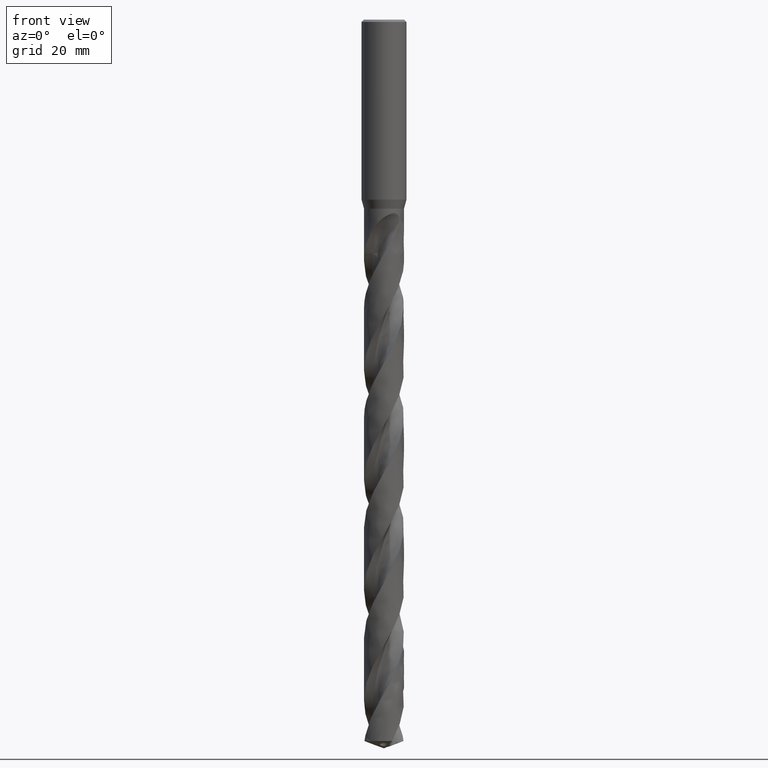
[diagram: clean part render]
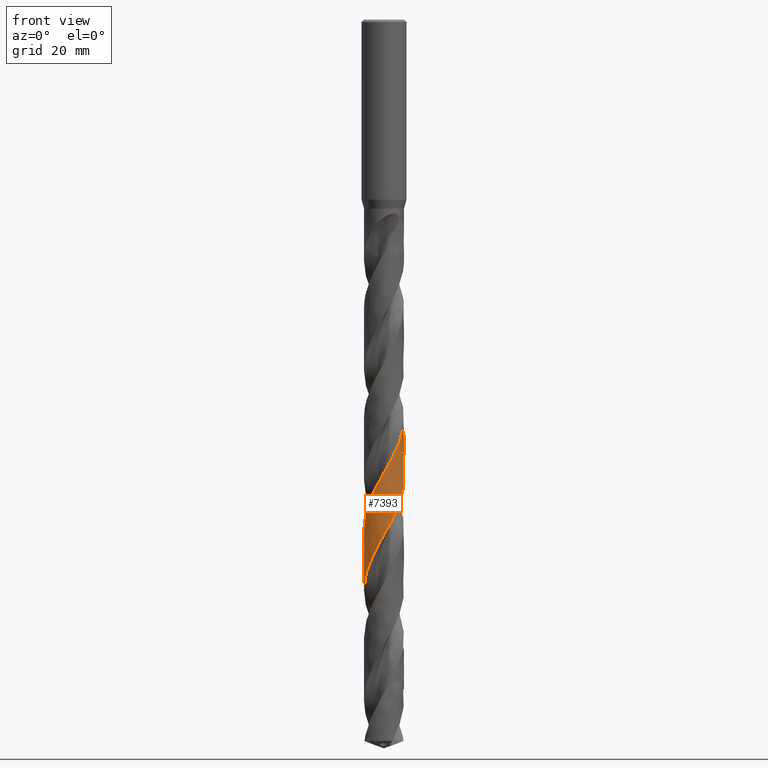
[diagram: same view with one face highlighted and labeled with its STEP entity id]
A machine part, front view. The second image highlights one B-rep face of the part: STEP entity #7393.
In plain terms, the highlighted face is a freeform B-spline surface patch.
Its self-contained STEP definition (entity closure, byte-faithful):
#2973 = VERTEX_POINT('', #2974);
#2974 = CARTESIAN_POINT('', (-4.45, 5.04471247667331E-15, -77.9364069246029));
#3131 = EDGE_CURVE('', #3132, #2973, #3134, .T.);
#3132 = VERTEX_POINT('', #3133);
#3133 = CARTESIAN_POINT('', (-4.45, 8.03775449722327E-15, -126.816492556376));
#3134 = B_SPLINE_CURVE_WITH_KNOTS('', 3, (#3135, #3136, #3137, #3138, #3139, #3140, #3141, #3142, #3143, #3144, #3145, #3146, #3147, #3148, #3149, #3150, #3151, #3152, #3153, #3154, #3155, #3156, #3157, #3158, #3159, #3160, #3161, #3162, #3163, #3164, #3165, #3166, #3167, #3168, #3169, #3170, #3171, #3172, #3173, #3174, #3175, #3176, #3177, #3178, #3179, #3180, #3181, #3182, #3183, #3184, #3185, #3186, #3187, #3188, #3189, #3190, #3191, #3192, #3193, #3194, #3195, #3196, #3197, #3198, #3199, #3200, #3201, #3202, #3203, #3204, #3205, #3206, #3207, #3208, #3209, #3210, #3211, #3212, #3213, #3214, #3215, #3216, #3217, #3218, #3219, #3220, #3221, #3222, #3223, #3224, #3225, #3226, #3227, #3228, #3229, #3230, #3231, #3232, #3233, #3234, #3235, #3236, #3237, #3238, #3239, #3240, #3241, #3242, #3243, #3244, #3245, #3246, #3247, #3248, #3249, #3250, #3251, #3252, #3253, #3254, #3255, #3256, #3257, #3258, #3259, #3260, #3261, #3262, #3263, #3264, #3265, #3266, #3267, #3268, #3269, #3270, #3271, #3272, #3273, #3274, #3275, #3276, #3277, #3278, #3279, #3280, #3281, #3282, #3283, #3284, #3285, #3286, #3287, #3288, #3289, #3290, #3291, #3292, #3293, #3294, #3295, #3296, #3297, #3298, #3299, #3300, #3301, #3302, #3303, #3304, #3305, #3306, #3307, #3308, #3309, #3310, #3311, #3312, #3313, #3314, #3315, #3316, #3317, #3318, #3319, #3320, #3321, #3322, #3323, #3324, #3325, #3326, #3327, #3328, #3329, #3330, #3331, #3332, #3333, #3334, #3335, #3336, #3337, #3338, #3339, #3340, #3341, #3342, #3343, #3344, #3345, #3346, #3347, #3348, #3349, #3350, #3351, #3352, #3353, #3354, #3355, #3356, #3357, #3358, #3359, #3360, #3361, #3362, #3363, #3364, #3365, #3366, #3367, #3368, #3369, #3370, #3371, #3372, #3373, #3374, #3375, #3376, #3377, #3378, #3379, #3380, #3381, #3382, #3383, #3384, #3385, #3386, #3387, #3388, #3389, #3390, #3391, #3392, #3393, #3394, #3395, #3396, #3397, #3398, #3399, #3400, #3401, #3402), .UNSPECIFIED., .F., .U., (4, 3, 3, 3, 3, 3, 3, 3, 3, 3, 3, 3, 3, 3, 3, 3, 3, 3, 3, 3, 3, 3, 3, 3, 3, 3, 3, 3, 3, 3, 3, 3, 3, 3, 3, 3, 3, 3, 3, 3, 3, 3, 3, 3, 3, 3, 3, 3, 3, 3, 3, 3, 3, 3, 3, 3, 3, 3, 3, 3, 3, 3, 3, 3, 3, 3, 3, 3, 3, 3, 3, 3, 3, 3, 3, 3, 3, 3, 3, 3, 3, 3, 3, 3, 3, 3, 3, 3, 3, 4), (0., 1.00019033047343, 1.66623800078271, 2.33215867872711, 2.9979555570398, 3.66363169036952, 4.32918939686239, 4.99463037967866, 5.65995649495976, 6.32516914360414, 6.99026899422075, 7.65525670050227, 8.32013281939076, 8.98489725832138, 9.64954948439048, 10.3140891448319, 10.9785153946755, 11.6428266899531, 12.3070215370674, 12.9710981940588, 13.635054172065, 14.0778874872815, 14.13627213697, 14.8025130335221, 15.4686208789362, 16.1345996108457, 16.8004529207069, 17.4661837785186, 18.1317945099715, 18.7972874560307, 19.4626645222889, 20.1279269179038, 20.7930757377307, 21.4581119543037, 22.1230359540188, 22.7878476757793, 23.4525471504583, 24.1171339877246, 24.7816071600958, 25.4459656087018, 26.1102080652516, 26.7743326137297, 27.4383369292533, 28.1022186407691, 28.1605948675949, 28.2189789648699, 28.8852234859198, 29.5513344643807, 30.2173158357679, 30.8831712664234, 31.5489037763001, 32.2145157391456, 32.8800094434142, 33.5453868052241, 34.2106490988227, 34.8757973847822, 35.540832605403, 36.205755190226, 36.8705650977816, 37.5352622953876, 38.199846401134, 38.8643164359603, 39.5286712810684, 40.1929096371724, 40.8570296250672, 41.521028904618, 42.1849050336944, 42.2432812147495, 42.3016714311548, 42.9679168572716, 43.6340283347223, 44.3000097852658, 44.9658648453837, 45.6315965736301, 46.2972073774093, 46.9626994908773, 47.6280748349941, 48.2933347353473, 48.9584802124224, 49.6235121777599, 50.2884310945734, 50.9532369277899, 51.6179295830217, 52.2825086816361, 52.946973277471, 53.6113221886952, 54.275554083993, 54.9396671087731, 55.603658892487, 56.3087243463285), .UNSPECIFIED.);
#3135 = CARTESIAN_POINT('', (-4.45, 8.47436271208319E-15, -126.816492556376));
#3136 = CARTESIAN_POINT('', (-4.45, -0.165218554062062, -126.526913136889));
#3137 = CARTESIAN_POINT('', (-4.44078447722619, -0.330505950077513, -126.23722708185));
#3138 = CARTESIAN_POINT('', (-4.42241566229207, -0.494711744267289, -125.947654198815));
#3139 = CARTESIAN_POINT('', (-4.41018348405513, -0.604059818667905, -125.754821556612));
#3140 = CARTESIAN_POINT('', (-4.3938905250667, -0.712975329907755, -125.56195806762));
#3141 = CARTESIAN_POINT('', (-4.37358663453475, -0.821121154409661, -125.369128380771));
#3142 = CARTESIAN_POINT('', (-4.35328661525585, -0.929246359225293, -125.176335459906));
#3143 = CARTESIAN_POINT('', (-4.32897037608889, -1.0366386967085, -124.983511273115));
#3144 = CARTESIAN_POINT('', (-4.30071222563018, -1.14296734525316, -124.790721344783));
#3145 = CARTESIAN_POINT('', (-4.27245932857288, -1.24927622650726, -124.59796725754));
#3146 = CARTESIAN_POINT('', (-4.24025668678078, -1.35455679136163, -124.405181842928));
#3147 = CARTESIAN_POINT('', (-4.20420295996698, -1.45848464901241, -124.212430521891));
#3148 = CARTESIAN_POINT('', (-4.16815577164378, -1.56239365892178, -124.019714157094));
#3149 = CARTESIAN_POINT('', (-4.1282466506198, -1.66498563244622, -123.826966935374));
#3150 = CARTESIAN_POINT('', (-4.08459851841765, -1.76594307477346, -123.634253379075));
#3151 = CARTESIAN_POINT('', (-4.04095815141838, -1.86688255630872, -123.441574107402));
#3152 = CARTESIAN_POINT('', (-3.99356514323843, -1.96622274585253, -123.248863865703));
#3153 = CARTESIAN_POINT('', (-3.94256511901019, -2.06365701664888, -123.056187653627));
#3154 = CARTESIAN_POINT('', (-3.89157403902566, -2.1610741996913, -122.863545232574));
#3155 = CARTESIAN_POINT('', (-3.83696037855751, -2.25661834273067, -122.670871432726));
#3156 = CARTESIAN_POINT('', (-3.77889150957669, -2.34999552315513, -122.478231850059));
#3157 = CARTESIAN_POINT('', (-3.72083266436661, -2.44335658493522, -122.285625520579));
#3158 = CARTESIAN_POINT('', (-3.6593004491763, -2.53458248981728, -122.092988172986));
#3159 = CARTESIAN_POINT('', (-3.59448426452203, -2.62339148281447, -121.900384589195));
#3160 = CARTESIAN_POINT('', (-3.52967913380703, -2.71218533006956, -121.707813852575));
#3161 = CARTESIAN_POINT('', (-3.46156891001216, -2.79859355441855, -121.5152123159));
#3162 = CARTESIAN_POINT('', (-3.39036341539509, -2.88234902667087, -121.322644563449));
#3163 = CARTESIAN_POINT('', (-3.31916999487098, -2.96609029676978, -121.130109464111));
#3164 = CARTESIAN_POINT('', (-3.24485851346535, -3.04720781448725, -120.93754311635));
#3165 = CARTESIAN_POINT('', (-3.16765687949445, -3.12545195032518, -120.745010961009));
#3166 = CARTESIAN_POINT('', (-3.0904682627057, -3.20368289320181, -120.55251126905));
#3167 = CARTESIAN_POINT('', (-3.01036504618744, -3.27906717080418, -120.359980383622));
#3168 = CARTESIAN_POINT('', (-2.92759329008695, -3.35137248419775, -120.167483442253));
#3169 = CARTESIAN_POINT('', (-2.84483542339283, -3.4236656644927, -119.975018802581));
#3170 = CARTESIAN_POINT('', (-2.75938177740326, -3.49290544766211, -119.782523403335));
#3171 = CARTESIAN_POINT('', (-2.67149586513004, -3.55887760994855, -119.590061598896));
#3172 = CARTESIAN_POINT('', (-2.58362471514816, -3.62483869081982, -119.397632122473));
#3173 = CARTESIAN_POINT('', (-2.49329211330728, -3.68755580437756, -119.20517168241));
#3174 = CARTESIAN_POINT('', (-2.40077567238837, -3.74683548756389, -119.012745244761));
#3175 = CARTESIAN_POINT('', (-2.30827484833157, -3.80610516428403, -118.820351288876));
#3176 = CARTESIAN_POINT('', (-2.21356043958617, -3.8619581247209, -118.62792605087));
#3177 = CARTESIAN_POINT('', (-2.11692289034422, -3.91422246127333, -118.435534901146));
#3178 = CARTESIAN_POINT('', (-2.02030170765602, -3.96647794632776, -118.243176334823));
#3179 = CARTESIAN_POINT('', (-1.9217257223272, -4.0151634582175, -118.05078688651));
#3180 = CARTESIAN_POINT('', (-1.82149850232564, -4.06012847161582, -117.858431073911));
#3181 = CARTESIAN_POINT('', (-1.72128838714057, -4.1050858112674, -117.666108088829));
#3182 = CARTESIAN_POINT('', (-1.61939324422089, -4.14633933809104, -117.473754333775));
#3183 = CARTESIAN_POINT('', (-1.51612673089642, -4.18376143390864, -117.281434355263));
#3184 = CARTESIAN_POINT('', (-1.41287808405031, -4.22117705520663, -117.089147650661));
#3185 = CARTESIAN_POINT('', (-1.30822416586289, -4.25477506542675, -116.896829728279));
#3186 = CARTESIAN_POINT('', (-1.20248575500843, -4.28445189131606, -116.704545919719));
#3187 = CARTESIAN_POINT('', (-1.09676587920497, -4.31412351510827, -116.512295816888));
#3188 = CARTESIAN_POINT('', (-0.989927005089895, -4.33988509932498, -116.320014664122));
#3189 = CARTESIAN_POINT('', (-0.882297374861005, -4.36165694917808, -116.127767300843));
#3190 = CARTESIAN_POINT('', (-0.77468689678193, -4.38342492484031, -115.935554147013));
#3191 = CARTESIAN_POINT('', (-0.66624929006791, -4.40121197492075, -115.743310313097));
#3192 = CARTESIAN_POINT('', (-0.557318663355887, -4.4149627300211, -115.551100033558));
#3193 = CARTESIAN_POINT('', (-0.448407832005385, -4.42871098627262, -115.358924683332));
#3194 = CARTESIAN_POINT('', (-0.338967220551853, -4.43842910956496, -115.166718360192));
#3195 = CARTESIAN_POINT('', (-0.229332695800508, -4.44408669072029, -114.974546011171));
#3196 = CARTESIAN_POINT('', (-0.156210649059359, -4.44786008158069, -114.84637438349));
#3197 = CARTESIAN_POINT('', (-0.0829889761527689, -4.44982855831882, -114.71819372038));
#3198 = CARTESIAN_POINT('', (-0.00976778549555304, -4.44998927980355, -114.590023248945));
#3199 = CARTESIAN_POINT('', (-0.000114054804124615, -4.45001046987047, -114.573124818276));
#3200 = CARTESIAN_POINT('', (0.00953977755878622, -4.45000024588791, -114.556226377098));
#3201 = CARTESIAN_POINT('', (0.0191934827872663, -4.4499586076972, -114.539327969895));
#3202 = CARTESIAN_POINT('', (0.129354171612029, -4.44948346456191, -114.346496291963));
#3203 = CARTESIAN_POINT('', (0.239518800154697, -4.44491478948598, -114.153633595535));
#3204 = CARTESIAN_POINT('', (0.34934567723751, -4.4362661775186, -113.960804869151));
#3205 = CARTESIAN_POINT('', (0.459150621426295, -4.42761929271578, -113.768014651483));
#3206 = CARTESIAN_POINT('', (0.568655151951697, -4.41489120587435, -113.575193039618));
#3207 = CARTESIAN_POINT('', (0.677521077590015, -4.39812064289069, -113.382405797131));
#3208 = CARTESIAN_POINT('', (0.786365901448348, -4.38135333059111, -113.189655923123));
#3209 = CARTESIAN_POINT('', (0.894608424669799, -4.36053955099711, -112.996874613566));
#3210 = CARTESIAN_POINT('', (1.00191426290611, -4.33574305163316, -112.804127517421));
#3211 = CARTESIAN_POINT('', (1.10919989251207, -4.31095122212966, -112.611416720836));
#3212 = CARTESIAN_POINT('', (1.21558565202664, -4.28216971285036, -112.418674908103));
#3213 = CARTESIAN_POINT('', (1.32074163590083, -4.24948720802851, -112.225966929066));
#3214 = CARTESIAN_POINT('', (1.42587828133282, -4.2168107135991, -112.033294389497));
#3215 = CARTESIAN_POINT('', (1.52982175916841, -4.18022344181272, -111.84059072925));
#3216 = CARTESIAN_POINT('', (1.63225051658353, -4.13983794986141, -111.647921228034));
#3217 = CARTESIAN_POINT('', (1.73466079146396, -4.0994597451825, -111.455286492647));
#3218 = CARTESIAN_POINT('', (1.83559095723413, -4.05527128517249, -111.26262028029));
#3219 = CARTESIAN_POINT('', (1.93472969768665, -4.00740826431364, -111.069988386598));
#3220 = CARTESIAN_POINT('', (2.03385089470873, -3.95955371321721, -110.877390580733));
#3221 = CARTESIAN_POINT('', (2.13121446537177, -3.90800985610914, -110.684761622099));
#3222 = CARTESIAN_POINT('', (2.2265190418347, -3.85293562836799, -110.492166576141));
#3223 = CARTESIAN_POINT('', (2.32180702326773, -3.7978709904964, -110.299605066038));
#3224 = CARTESIAN_POINT('', (2.41506948151588, -3.73925827657414, -110.107012592958));
#3225 = CARTESIAN_POINT('', (2.50601753727036, -3.67727835537281, -109.914454057845));
#3226 = CARTESIAN_POINT('', (2.59694991909709, -3.61530911575009, -109.721928708143));
#3227 = CARTESIAN_POINT('', (2.68559932389652, -3.54995299767284, -109.529371997071));
#3228 = CARTESIAN_POINT('', (2.77169227625752, -3.48141091021074, -109.336849580708));
#3229 = CARTESIAN_POINT('', (2.85777053054603, -3.41288052447964, -109.144360032406));
#3230 = CARTESIAN_POINT('', (2.94132172772425, -3.34114253479386, -108.951839180009));
#3231 = CARTESIAN_POINT('', (3.02208780438184, -3.26641780894706, -108.759352395934));
#3232 = CARTESIAN_POINT('', (3.10284020812481, -3.1917057332727, -108.566898198007));
#3233 = CARTESIAN_POINT('', (3.18083593005018, -3.11398245419676, -108.374413080097));
#3234 = CARTESIAN_POINT('', (3.25583323282412, -3.03348808470348, -108.181961724378));
#3235 = CARTESIAN_POINT('', (3.3308178807058, -2.95300729766633, -107.989542842509));
#3236 = CARTESIAN_POINT('', (3.4028308034101, -2.86972882680352, -107.797092855521));
#3237 = CARTESIAN_POINT('', (3.47164942485083, -2.78390917074047, -107.604676991892));
#3238 = CARTESIAN_POINT('', (3.54045642569423, -2.69810400604101, -107.412293619285));
#3239 = CARTESIAN_POINT('', (3.60609304289801, -2.60973005849663, -107.219878867282));
#3240 = CARTESIAN_POINT('', (3.66835680279702, -2.51905902419391, -107.027498308358));
#3241 = CARTESIAN_POINT('', (3.73061005005748, -2.42840329882551, -106.835150231047));
#3242 = CARTESIAN_POINT('', (3.78951246426094, -2.33542079189155, -106.642771131122));
#3243 = CARTESIAN_POINT('', (3.8448816381587, -2.24039844415007, -106.450425821344));
#3244 = CARTESIAN_POINT('', (3.90024142940953, -2.14539219852961, -106.258113105661));
#3245 = CARTESIAN_POINT('', (3.95208819288195, -2.04831417515156, -106.065769463339));
#3246 = CARTESIAN_POINT('', (4.00026134190431, -1.94946382281537, -105.87345974085));
#3247 = CARTESIAN_POINT('', (4.04842625182889, -1.85063037694544, -105.681182909269));
#3248 = CARTESIAN_POINT('', (4.09293495167187, -1.74999214345359, -105.488874756018));
#3249 = CARTESIAN_POINT('', (4.13365004555442, -1.64785839831217, -105.296600816632));
#3250 = CARTESIAN_POINT('', (4.17435810982455, -1.54574228694179, -105.104360074057));
#3251 = CARTESIAN_POINT('', (4.21128737787638, -1.44209726675627, -104.912088163455));
#3252 = CARTESIAN_POINT('', (4.24432355387876, -1.33724252474634, -104.719850175646));
#3253 = CARTESIAN_POINT('', (4.27735396200991, -1.23240608959645, -104.527645751163));
#3254 = CARTESIAN_POINT('', (4.30650389377622, -1.12632455597021, -104.33541048311));
#3255 = CARTESIAN_POINT('', (4.33168277911348, -1.01932541473847, -104.143208937081));
#3256 = CARTESIAN_POINT('', (4.35685719500772, -0.912345266665479, -103.951041508283));
#3257 = CARTESIAN_POINT('', (4.37807056064344, -0.804411471756946, -103.758842972342));
#3258 = CARTESIAN_POINT('', (4.39525702659935, -0.695856069980832, -103.566678526825));
#3259 = CARTESIAN_POINT('', (4.41244038112145, -0.587320321049503, -103.374548870714));
#3260 = CARTESIAN_POINT('', (4.42560399070972, -0.478127247919856, -103.182387949593));
#3261 = CARTESIAN_POINT('', (4.43470684985361, -0.368612473828242, -102.990261081516));
#3262 = CARTESIAN_POINT('', (4.44380802821473, -0.259117920915783, -102.798169688395));
#3263 = CARTESIAN_POINT('', (4.44885299381768, -0.149264856205531, -102.606047403792));
#3264 = CARTESIAN_POINT('', (4.44982564362019, -0.039392148719161, -102.413958794088));
#3265 = CARTESIAN_POINT('', (4.44991117034055, -0.0297308581866385, -102.397068122065));
#3266 = CARTESIAN_POINT('', (4.44996523284309, -0.0200692574176821, -102.380177438866));
#3267 = CARTESIAN_POINT('', (4.44998782946308, -0.0104075756299047, -102.363286789223));
#3268 = CARTESIAN_POINT('', (4.4500104291296, -0.000744591226652216, -102.346393862335));
#3269 = CARTESIAN_POINT('', (4.45000155448672, 0.00891849948739277, -102.329500924829));
#3270 = CARTESIAN_POINT('', (4.44996120534638, 0.0185814669009853, -102.312608021293));
#3271 = CARTESIAN_POINT('', (4.44950076500505, 0.128849491874703, -102.119836274344));
#3272 = CARTESIAN_POINT('', (4.44493881222117, 0.239122018003464, -101.927033360396));
#3273 = CARTESIAN_POINT('', (4.43628894958115, 0.349056379148613, -101.734264556191));
#3274 = CARTESIAN_POINT('', (4.42764082072656, 0.458968704961785, -101.54153439072));
#3275 = CARTESIAN_POINT('', (4.41490351037518, 0.568580377994841, -101.348772733116));
#3276 = CARTESIAN_POINT('', (4.39811587013238, 0.677552059173133, -101.156045532086));
#3277 = CARTESIAN_POINT('', (4.38133149630764, 0.78650253742703, -100.963355830526));
#3278 = CARTESIAN_POINT('', (4.36049276972679, 0.894849598132471, -100.770634598352));
#3279 = CARTESIAN_POINT('', (4.33566366088509, 1.00225776109767, -100.577947689387));
#3280 = CARTESIAN_POINT('', (4.31083924736412, 1.10964561258988, -100.385297218574));
#3281 = CARTESIAN_POINT('', (4.28201746964996, 1.21613152251986, -100.192615586285));
#3282 = CARTESIAN_POINT('', (4.2492872976874, 1.32138467590348, -99.9999679400357));
#3283 = CARTESIAN_POINT('', (4.21656316790464, 1.42661839894382, -99.8073558576606));
#3284 = CARTESIAN_POINT('', (4.17992083219818, 1.53065606998209, -99.6147125286646));
#3285 = CARTESIAN_POINT('', (4.13947326592958, 1.63317515308504, -99.4221034650291));
#3286 = CARTESIAN_POINT('', (4.09903302367469, 1.7356756726194, -99.2295292779401));
#3287 = CARTESIAN_POINT('', (4.05477541741664, 1.83669245696891, -99.0369235325951));
#3288 = CARTESIAN_POINT('', (4.00683669222009, 1.93591314936358, -98.8443521950116));
#3289 = CARTESIAN_POINT('', (3.95890648424639, 2.03511621332226, -98.6518150713749));
#3290 = CARTESIAN_POINT('', (3.9072803202013, 2.13255717872528, -98.4592466708493));
#3291 = CARTESIAN_POINT('', (3.85211770522471, 2.22793383768333, -98.2667123218401));
#3292 = CARTESIAN_POINT('', (3.79696473384687, 2.32329382277213, -98.0742116319315));
#3293 = CARTESIAN_POINT('', (3.73825755494314, 2.4166230510683, -97.881679836224));
#3294 = CARTESIAN_POINT('', (3.67617768122578, 2.50763188208666, -97.6891821100578));
#3295 = CARTESIAN_POINT('', (3.61410854340121, 2.59862497433181, -97.4967176738265));
#3296 = CARTESIAN_POINT('', (3.54864691729995, 2.68732925116255, -97.3042217855473));
#3297 = CARTESIAN_POINT('', (3.47999453097811, 2.77347040084484, -97.1117602774367));
#3298 = CARTESIAN_POINT('', (3.41135390978495, 2.85959678830598, -96.9193317519292));
#3299 = CARTESIAN_POINT('', (3.33950072248109, 2.94318964457856, -96.7268718228972));
#3300 = CARTESIAN_POINT('', (3.26465668586495, 3.02399019896515, -96.5344460774324));
#3301 = CARTESIAN_POINT('', (3.18982537162446, 3.10477701845646, -96.342053041489));
#3302 = CARTESIAN_POINT('', (3.11197864567283, 3.18280006290313, -96.1496289400522));
#3303 = CARTESIAN_POINT('', (3.03135743612418, 3.25781707504498, -95.9572387518038));
#3304 = CARTESIAN_POINT('', (2.9507498812422, 3.33282138169284, -95.7648811483294));
#3305 = CARTESIAN_POINT('', (2.86734115373367, 3.40484641158472, -95.5724923204048));
#3306 = CARTESIAN_POINT('', (2.78138872145804, 3.47366906600875, -95.3801377177614));
#3307 = CARTESIAN_POINT('', (2.69545085461517, 3.54248005779892, -95.1878157113803));
#3308 = CARTESIAN_POINT('', (2.60694146770135, 3.6081127393626, -94.9954622425477));
#3309 = CARTESIAN_POINT('', (2.51613333468147, 3.67036415660691, -94.8031430606764));
#3310 = CARTESIAN_POINT('', (2.4253405970099, 3.73260501992594, -94.6108564840432));
#3311 = CARTESIAN_POINT('', (2.33221924676776, 3.79148674018493, -94.418538756698));
#3312 = CARTESIAN_POINT('', (2.23705720793276, 3.84682662053232, -94.2262549616402));
#3313 = CARTESIAN_POINT('', (2.14191136000691, 3.90215708532929, -94.0340038818278));
#3314 = CARTESIAN_POINT('', (2.04469279113408, 3.95396594932485, -93.8417217388118));
#3315 = CARTESIAN_POINT('', (1.94570198055559, 4.00209242807586, -93.6494736390416));
#3316 = CARTESIAN_POINT('', (1.84672816101367, 4.05021064627465, -93.4572585372283));
#3317 = CARTESIAN_POINT('', (1.74594943044835, 4.09466395179726, -93.265012028615));
#3318 = CARTESIAN_POINT('', (1.64367625839045, 4.13531478337546, -93.072799819295));
#3319 = CARTESIAN_POINT('', (1.5414208159776, 4.17595856789723, -92.8806209310717));
#3320 = CARTESIAN_POINT('', (1.43763729197121, 4.21281475674175, -92.6884107699715));
#3321 = CARTESIAN_POINT('', (1.33264598913264, 4.24576903135919, -92.4962346530506));
#3322 = CARTESIAN_POINT('', (1.2276730956312, 4.27871752772325, -92.3040922325868));
#3323 = CARTESIAN_POINT('', (1.12145692695203, 4.30777673287048, -92.11191882357));
#3324 = CARTESIAN_POINT('', (1.01432597975764, 4.33285619502757, -91.9197792850685));
#3325 = CARTESIAN_POINT('', (0.90721412344869, 4.35793118798924, -91.727673986103));
#3326 = CARTESIAN_POINT('', (0.799151317791241, 4.37903642563493, -91.5355374678472));
#3327 = CARTESIAN_POINT('', (0.690470744993882, 4.39610624875102, -91.3434351379294));
#3328 = CARTESIAN_POINT('', (0.581809925632959, 4.41317296931018, -91.1513677239223));
#3329 = CARTESIAN_POINT('', (0.472495359005187, 4.42621143400181, -90.9592689584478));
#3330 = CARTESIAN_POINT('', (0.362863835246899, 4.43518092495337, -90.7672043459635));
#3331 = CARTESIAN_POINT('', (0.253252644604283, 4.44414875235333, -90.5751753552771));
#3332 = CARTESIAN_POINT('', (0.143287507977955, 4.44905212366002, -90.3831153411294));
#3333 = CARTESIAN_POINT('', (0.03330827676898, 4.44987534192805, -90.1910891467684));
#3334 = CARTESIAN_POINT('', (0.0236375456910489, 4.44994772943614, -90.1742038342856));
#3335 = CARTESIAN_POINT('', (0.0139665468854146, 4.44998859151374, -90.1573185105572));
#3336 = CARTESIAN_POINT('', (0.0042955103776915, 4.44999792680745, -90.1404332204236));
#3337 = CARTESIAN_POINT('', (-0.00537785133153856, 4.45000726434565, -90.1235438705699));
#3338 = CARTESIAN_POINT('', (-0.0150512761601983, 4.44998505996199, -90.106654509976));
#3339 = CARTESIAN_POINT('', (-0.0247245336384483, 4.44993131378861, -90.0897651833601));
#3340 = CARTESIAN_POINT('', (-0.135098564551426, 4.4493180579319, -89.8970541899653));
#3341 = CARTESIAN_POINT('', (-0.245471430001307, 4.44459533741564, -89.70431188563));
#3342 = CARTESIAN_POINT('', (-0.355499509276615, 4.4357772823829, -89.5116038332959));
#3343 = CARTESIAN_POINT('', (-0.46550546740276, 4.42696100022044, -89.3189345249225));
#3344 = CARTESIAN_POINT('', (-0.575204310384574, 4.41404804890887, -89.1262336215379));
#3345 = CARTESIAN_POINT('', (-0.684255635234596, 4.39707791898777, -88.9335672693058));
#3346 = CARTESIAN_POINT('', (-0.793285672947287, 4.38011110168563, -88.7409385261088));
#3347 = CARTESIAN_POINT('', (-0.901705020870895, 4.35908299520508, -88.54827815945));
#3348 = CARTESIAN_POINT('', (-1.00917719679195, 4.33405830434654, -88.3556522241014));
#3349 = CARTESIAN_POINT('', (-1.11662897656827, 4.30903836269134, -88.1630628454377));
#3350 = CARTESIAN_POINT('', (-1.22317068685607, 4.28001477166919, -87.9704421678262));
#3351 = CARTESIAN_POINT('', (-1.32847072221873, 4.24707729388196, -87.7778556253543));
#3352 = CARTESIAN_POINT('', (-1.43375125356135, 4.21414591688306, -87.5853047543974));
#3353 = CARTESIAN_POINT('', (-1.53782689962688, 4.1772907547592, -87.3927225098097));
#3354 = CARTESIAN_POINT('', (-1.64037432846146, 4.13662568557087, -87.2001746436454));
#3355 = CARTESIAN_POINT('', (-1.7429031304338, 4.0959680028441, -87.007661752152));
#3356 = CARTESIAN_POINT('', (-1.84393877516116, 4.05148813354668, -86.8151172186404));
#3357 = CARTESIAN_POINT('', (-1.94316808455546, 4.00332334381887, -86.6226071851945));
#3358 = CARTESIAN_POINT('', (-2.04237969958911, 3.95516714273453, -86.4301314797307));
#3359 = CARTESIAN_POINT('', (-2.13981914951201, 3.9033110363071, -86.2376243802161));
#3360 = CARTESIAN_POINT('', (-2.23518361275282, 3.84791556784726, -86.0451514660719));
#3361 = CARTESIAN_POINT('', (-2.33053134304327, 3.79252981925153, -85.8527123238341));
#3362 = CARTESIAN_POINT('', (-2.42383770152227, 3.73358684197097, -85.6602419369494));
#3363 = CARTESIAN_POINT('', (-2.51481256266948, 3.67126923211031, -85.4678057542166));
#3364 = CARTESIAN_POINT('', (-2.60577163952221, 3.60896243446186, -85.2754029594916));
#3365 = CARTESIAN_POINT('', (-2.69443091603657, 3.54326104810857, -85.0829686174278));
#3366 = CARTESIAN_POINT('', (-2.78051556962588, 3.47436802412584, -84.8905687479475));
#3367 = CARTESIAN_POINT('', (-2.86658541683915, 3.40548684959568, -84.6982019708327));
#3368 = CARTESIAN_POINT('', (-2.9501103979247, 3.33339201876335, -84.505803693653));
#3369 = CARTESIAN_POINT('', (-3.03083136762806, 3.25830649586589, -84.3134397130255));
#3370 = CARTESIAN_POINT('', (-3.11153856173218, 3.18323378683917, -84.1211085606595));
#3371 = CARTESIAN_POINT('', (-3.18947033387016, 3.10514567319843, -83.9287462044579));
#3372 = CARTESIAN_POINT('', (-3.2643842633825, 3.02428427582143, -83.7364179107243));
#3373 = CARTESIAN_POINT('', (-3.33928545830522, 2.94343662404179, -83.5441223108023));
#3374 = CARTESIAN_POINT('', (-3.41119558682705, 2.85978886449674, -83.3517953646322));
#3375 = CARTESIAN_POINT('', (-3.47989143196275, 2.77359975875256, -83.1595027530721));
#3376 = CARTESIAN_POINT('', (-3.5485755939096, 2.68742531129808, -82.9672428449585));
#3377 = CARTESIAN_POINT('', (-3.6140696323675, 2.59868146035112, -82.7749513895656));
#3378 = CARTESIAN_POINT('', (-3.67617053443775, 2.50764235921546, -82.5826943174181));
#3379 = CARTESIAN_POINT('', (-3.73826086431597, 2.41661875677351, -82.3904699755307));
#3380 = CARTESIAN_POINT('', (-3.79698023472054, 2.32326982465081, -82.1982143622143));
#3381 = CARTESIAN_POINT('', (-3.85214608712723, 2.22788476439658, -82.0059928184466));
#3382 = CARTESIAN_POINT('', (-3.90730251495617, 2.13251599980128, -81.813804113959));
#3383 = CARTESIAN_POINT('', (-3.95892564934961, 2.03507893674514, -81.6215842127095));
#3384 = CARTESIAN_POINT('', (-4.00685496652966, 1.93587532584014, -81.4293984820687));
#3385 = CARTESIAN_POINT('', (-4.0547760257912, 1.83668880709045, -81.2372458638148));
#3386 = CARTESIAN_POINT('', (-4.09902075280122, 1.73570284726661, -81.0450617492245));
#3387 = CARTESIAN_POINT('', (-4.13945190280173, 1.6332292993916, -80.85291202578));
#3388 = CARTESIAN_POINT('', (-4.17987601365843, 1.53077359236555, -80.6607957559855));
#3389 = CARTESIAN_POINT('', (-4.21650144055498, 1.42679639540235, -80.4686481124048));
#3390 = CARTESIAN_POINT('', (-4.24921432715251, 1.32161931051338, -80.276534631292));
#3391 = CARTESIAN_POINT('', (-4.28192145182485, 1.21646075112181, -80.0844549883276));
#3392 = CARTESIAN_POINT('', (-4.31072861770311, 1.11006665299857, -79.8923442180028));
#3393 = CARTESIAN_POINT('', (-4.33554598846213, 1.00276666375086, -79.700267467002));
#3394 = CARTESIAN_POINT('', (-4.36035891792025, 0.895485876841002, -79.5082250899344));
#3395 = CARTESIAN_POINT('', (-4.38119197584789, 0.787262888686888, -79.3161513773876));
#3396 = CARTESIAN_POINT('', (-4.3979802051889, 0.678432100336358, -79.1241119591406));
#3397 = CARTESIAN_POINT('', (-4.41476536965578, 0.569621180231636, -78.932107599781));
#3398 = CARTESIAN_POINT('', (-4.4275128106031, 0.460166221276042, -78.7400718018139));
#3399 = CARTESIAN_POINT('', (-4.436182612369, 0.350405236426726, -78.5480702579775));
#3400 = CARTESIAN_POINT('', (-4.44538871682198, 0.233854579483314, -78.3441917477857));
#3401 = CARTESIAN_POINT('', (-4.45, 0.116919215736867, -78.1402822588213));
#3402 = CARTESIAN_POINT('', (-4.45, 5.22870836160768E-15, -77.9364069246029));
#3947 = VERTEX_POINT('', #3948);
#3948 = CARTESIAN_POINT('', (-4.45, 4.20190967187908E-15, -64.1723925919638));
#3973 = EDGE_CURVE('', #3947, #2973, #3974, .T.);
#3974 = LINE('', #3975, #3976);
#3975 = CARTESIAN_POINT('', (-4.45, 4.20190967187908E-15, -64.1723925919638));
#3976 = VECTOR('', #3977, 13.764014332639);
#3977 = DIRECTION('', (0., 8.42802804794234E-16, -13.764014332639));
#7108 = EDGE_CURVE('', #7109, #3132, #7111, .T.);
#7109 = VERTEX_POINT('', #7110);
#7110 = CARTESIAN_POINT('', (-4.45, 7.18570411707461E-15, -112.901453857187));
#7111 = LINE('', #7112, #7113);
#7112 = CARTESIAN_POINT('', (-4.45, 7.18570411707461E-15, -112.901453857187));
#7113 = VECTOR('', #7114, 13.9150386991889);
#7114 = DIRECTION('', (-8.88178419700125E-16, 8.52050380148663E-16, -13.9150386991889));
#7393 = ADVANCED_FACE('', (#7394), #7673, .T.);
#7394 = FACE_OUTER_BOUND('', #7395, .T.);
#7395 = EDGE_LOOP('', (#7396, #7670, #7671, #7672));
#7396 = ORIENTED_EDGE('', *, *, #7397, .F.);
#7397 = EDGE_CURVE('', #7109, #3947, #7398, .T.);
#7398 = B_SPLINE_CURVE_WITH_KNOTS('', 3, (#7399, #7400, #7401, #7402, #7403, #7404, #7405, #7406, #7407, #7408, #7409, #7410, #7411, #7412, #7413, #7414, #7415, #7416, #7417, #7418, #7419, #7420, #7421, #7422, #7423, #7424, #7425, #7426, #7427, #7428, #7429, #7430, #7431, #7432, #7433, #7434, #7435, #7436, #7437, #7438, #7439, #7440, #7441, #7442, #7443, #7444, #7445, #7446, #7447, #7448, #7449, #7450, #7451, #7452, #7453, #7454, #7455, #7456, #7457, #7458, #7459, #7460, #7461, #7462, #7463, #7464, #7465, #7466, #7467, #7468, #7469, #7470, #7471, #7472, #7473, #7474, #7475, #7476, #7477, #7478, #7479, #7480, #7481, #7482, #7483, #7484, #7485, #7486, #7487, #7488, #7489, #7490, #7491, #7492, #7493, #7494, #7495, #7496, #7497, #7498, #7499, #7500, #7501, #7502, #7503, #7504, #7505, #7506, #7507, #7508, #7509, #7510, #7511, #7512, #7513, #7514, #7515, #7516, #7517, #7518, #7519, #7520, #7521, #7522, #7523, #7524, #7525, #7526, #7527, #7528, #7529, #7530, #7531, #7532, #7533, #7534, #7535, #7536, #7537, #7538, #7539, #7540, #7541, #7542, #7543, #7544, #7545, #7546, #7547, #7548, #7549, #7550, #7551, #7552, #7553, #7554, #7555, #7556, #7557, #7558, #7559, #7560, #7561, #7562, #7563, #7564, #7565, #7566, #7567, #7568, #7569, #7570, #7571, #7572, #7573, #7574, #7575, #7576, #7577, #7578, #7579, #7580, #7581, #7582, #7583, #7584, #7585, #7586, #7587, #7588, #7589, #7590, #7591, #7592, #7593, #7594, #7595, #7596, #7597, #7598, #7599, #7600, #7601, #7602, #7603, #7604, #7605, #7606, #7607, #7608, #7609, #7610, #7611, #7612, #7613, #7614, #7615, #7616, #7617, #7618, #7619, #7620, #7621, #7622, #7623, #7624, #7625, #7626, #7627, #7628, #7629, #7630, #7631, #7632, #7633, #7634, #7635, #7636, #7637, #7638, #7639, #7640, #7641, #7642, #7643, #7644, #7645, #7646, #7647, #7648, #7649, #7650, #7651, #7652, #7653, #7654, #7655, #7656, #7657, #7658, #7659, #7660, #7661, #7662, #7663, #7664, #7665, #7666, #7667, #7668, #7669), .UNSPECIFIED., .F., .U., (4, 3, 3, 3, 3, 3, 3, 3, 3, 3, 3, 3, 3, 3, 3, 3, 3, 3, 3, 3, 3, 3, 3, 3, 3, 3, 3, 3, 3, 3, 3, 3, 3, 3, 3, 3, 3, 3, 3, 3, 3, 3, 3, 3, 3, 3, 3, 3, 3, 3, 3, 3, 3, 3, 3, 3, 3, 3, 3, 3, 3, 3, 3, 3, 3, 3, 3, 3, 3, 3, 3, 3, 3, 3, 3, 3, 3, 3, 3, 3, 3, 3, 3, 3, 3, 3, 3, 3, 3, 3, 4), (0., 0.666248320761345, 1.33236353152512, 1.99834954591526, 2.66421004335246, 3.32994800818801, 3.99556576380732, 4.66106562414643, 5.32644949685845, 5.99171860109898, 6.65687400240437, 7.32191666376597, 7.98684698013192, 8.6516648740894, 9.31637035502943, 9.98096303329405, 10.6454418778871, 11.3098058018228, 11.9740535292301, 12.6381831449606, 13.302192296934, 13.9660785990265, 14.0536357595779, 14.1120175575394, 14.7782654711892, 15.4443796226089, 16.1103638778864, 16.7762218723059, 17.441956655067, 18.1075705876779, 18.7730658897129, 19.4384444798065, 20.1037076558153, 20.7688564015724, 21.4338916315479, 22.0988137958071, 22.763622812735, 23.4283185857872, 24.0929007298318, 24.7573682606922, 25.421719975197, 26.0859545410298, 26.7500700797064, 27.414064174135, 28.0779343150331, 28.1363104451667, 28.8025668849506, 29.4686926745199, 30.1346875348718, 30.8005551324991, 31.4662985345811, 32.1319201747049, 32.7974223160466, 33.4628068792343, 34.128075181192, 34.7932282687293, 35.4582670541667, 36.1231919720126, 36.7880029898899, 37.4527000216976, 38.1172826584835, 38.7817499171982, 39.4461006272798, 40.1103334326789, 40.7744464151225, 41.4384371926862, 42.1023032378313, 42.1606793339186, 42.219069614192, 42.8853262673998, 43.5514474482631, 44.2174370965816, 44.8832988536756, 45.5490358061481, 46.2146503808818, 46.880144792187, 47.5455209573349, 48.2107802046049, 48.8759235271274, 49.5409518080554, 50.205865487024, 50.8706644940936, 51.5353486872731, 52.1999176403045, 52.8643703478449, 53.5287055643325, 54.1929218876486, 54.8570173713012, 55.5209895520053, 55.9638294716624, 56.1777652594139), .UNSPECIFIED.);
#7399 = CARTESIAN_POINT('', (-4.45, 6.21794525791405E-15, -112.901453857187));
#7400 = CARTESIAN_POINT('', (-4.45, -0.110149103485915, -112.708612125901));
#7401 = CARTESIAN_POINT('', (-4.4459074494756, -0.220322019840254, -112.515740656291));
#7402 = CARTESIAN_POINT('', (-4.4377340375369, -0.3301766377056, -112.322904154054));
#7403 = CARTESIAN_POINT('', (-4.42956225856717, -0.440009307676353, -112.130106178692));
#7404 = CARTESIAN_POINT('', (-4.41730853960159, -0.549560990331393, -111.937277815309));
#7405 = CARTESIAN_POINT('', (-4.40100964376499, -0.658493823424058, -111.744485085838));
#7406 = CARTESIAN_POINT('', (-4.38471390918068, -0.767405528449417, -111.551729749481));
#7407 = CARTESIAN_POINT('', (-4.36436922621221, -0.875734243318333, -111.358943991821));
#7408 = CARTESIAN_POINT('', (-4.3400374402706, -0.983145470949975, -111.166193576716));
#7409 = CARTESIAN_POINT('', (-4.3157102400884, -1.09053645501837, -110.973479488868));
#7410 = CARTESIAN_POINT('', (-4.28738906441819, -1.1970470242105, -110.78073565361));
#7411 = CARTESIAN_POINT('', (-4.25516091389095, -1.30234618934243, -110.588026577749));
#7412 = CARTESIAN_POINT('', (-4.22293869403409, -1.4076259771713, -110.395352964488));
#7413 = CARTESIAN_POINT('', (-4.18679977920007, -1.51173138504034, -110.202649368178));
#7414 = CARTESIAN_POINT('', (-4.14685490104707, -1.61434024594009, -110.009981117553));
#7415 = CARTESIAN_POINT('', (-4.10691723555542, -1.71693057923377, -109.81734765614));
#7416 = CARTESIAN_POINT('', (-4.0631618889065, -1.81805863229218, -109.62468363795));
#7417 = CARTESIAN_POINT('', (-4.01572263688731, -1.91741276296754, -109.432055192097));
#7418 = CARTESIAN_POINT('', (-3.96829178738422, -2.01674929588054, -109.239460864902));
#7419 = CARTESIAN_POINT('', (-3.91716245968469, -2.11434566400038, -109.046836545252));
#7420 = CARTESIAN_POINT('', (-3.86249213866648, -2.20989920103602, -108.854247125285));
#7421 = CARTESIAN_POINT('', (-3.80783134594599, -2.30543608438218, -108.66169127105));
#7422 = CARTESIAN_POINT('', (-3.74961175448526, -2.398964113634, -108.46910567851));
#7423 = CARTESIAN_POINT('', (-3.6880128712624, -2.49019297673953, -108.276555094344));
#7424 = CARTESIAN_POINT('', (-3.6264246128983, -2.58140610427104, -108.084037722188));
#7425 = CARTESIAN_POINT('', (-3.5614376229705, -2.67035147442054, -107.891489923329));
#7426 = CARTESIAN_POINT('', (-3.49325106825035, -2.75675479035909, -107.698977722328));
#7427 = CARTESIAN_POINT('', (-3.42507616747798, -2.8431433388741, -107.506498424106));
#7428 = CARTESIAN_POINT('', (-3.35368041708607, -2.92701902011305, -107.313988841418));
#7429 = CARTESIAN_POINT('', (-3.27928337105733, -3.00812243306466, -107.121514441553));
#7430 = CARTESIAN_POINT('', (-3.20489893489204, -3.08921209946291, -106.92907266497));
#7431 = CARTESIAN_POINT('', (-3.12748859059345, -3.1675583086726, -106.736601217788));
#7432 = CARTESIAN_POINT('', (-3.04729173812503, -3.24291736909144, -106.54416449421));
#7433 = CARTESIAN_POINT('', (-2.96710843323117, -3.31826369917911, -106.351760278776));
#7434 = CARTESIAN_POINT('', (-2.88411190653361, -3.39064993664523, -106.15932602137));
#7435 = CARTESIAN_POINT('', (-2.79855750323081, -3.45985200566592, -105.96692713448));
#7436 = CARTESIAN_POINT('', (-2.71301756495064, -3.52904237441806, -105.774560777232));
#7437 = CARTESIAN_POINT('', (-2.62489257874158, -3.59507235662884, -105.582163946988));
#7438 = CARTESIAN_POINT('', (-2.53445304918406, -3.65773806354167, -105.389802557307));
#7439 = CARTESIAN_POINT('', (-2.44402881190508, -3.72039317440818, -105.197473693712));
#7440 = CARTESIAN_POINT('', (-2.35126036182185, -3.77970618034693, -105.005114976145));
#7441 = CARTESIAN_POINT('', (-2.25643437410981, -3.83549265614414, -104.812791034449));
#7442 = CARTESIAN_POINT('', (-2.16162447867535, -3.89126966479552, -104.62049973075));
#7443 = CARTESIAN_POINT('', (-2.06472473764652, -3.94354076791797, -104.428178662189));
#7444 = CARTESIAN_POINT('', (-1.9660342606288, -3.9921434450723, -104.235892661751));
#7445 = CARTESIAN_POINT('', (-1.86736068764827, -4.04073779739644, -104.043639596707));
#7446 = CARTESIAN_POINT('', (-1.7668642059118, -4.08568118225978, -103.851356086756));
#7447 = CARTESIAN_POINT('', (-1.66485321678375, -4.12683459403994, -103.659108119543));
#7448 = CARTESIAN_POINT('', (-1.56285987030908, -4.16798088839691, -103.46689340134));
#7449 = CARTESIAN_POINT('', (-1.4593188997208, -4.20535205269315, -103.274648551594));
#7450 = CARTESIAN_POINT('', (-1.35454944521547, -4.23883189103631, -103.082438718376));
#7451 = CARTESIAN_POINT('', (-1.24979831477389, -4.27230587379212, -102.890262502448));
#7452 = CARTESIAN_POINT('', (-1.14378289068556, -4.30190143683097, -102.69805666095));
#7453 = CARTESIAN_POINT('', (-1.03683123472494, -4.32752596649619, -102.505885561185));
#7454 = CARTESIAN_POINT('', (-0.929898596126227, -4.35314593979481, -102.31374863188));
#7455 = CARTESIAN_POINT('', (-0.821993504881298, -4.37480510132749, -102.121581571919));
#7456 = CARTESIAN_POINT('', (-0.713447866573965, -4.39243578685918, -101.929449910904));
#7457 = CARTESIAN_POINT('', (-0.604921916916398, -4.41006327443288, -101.737353099866));
#7458 = CARTESIAN_POINT('', (-0.495720093930348, -4.42366952776582, -101.545225932855));
#7459 = CARTESIAN_POINT('', (-0.386178100667816, -4.43321175611599, -101.353134047372));
#7460 = CARTESIAN_POINT('', (-0.27665637402479, -4.44275221903624, -101.161077701256));
#7461 = CARTESIAN_POINT('', (-0.166757423178943, -4.44823334522086, -100.968991639918));
#7462 = CARTESIAN_POINT('', (-0.056821255931539, -4.44963721497327, -100.776940247307));
#7463 = CARTESIAN_POINT('', (-0.0423222391334058, -4.44982236542587, -100.751611400238));
#7464 = CARTESIAN_POINT('', (-0.0278221995012523, -4.44993664960454, -100.726282521491));
#7465 = CARTESIAN_POINT('', (-0.013321910041474, -4.44998005913653, -100.700953763451));
#7466 = CARTESIAN_POINT('', (-0.00365333508664049, -4.45000900395967, -100.684064928487));
#7467 = CARTESIAN_POINT('', (0.00601538257564826, -4.45000643805744, -100.667176091819));
#7468 = CARTESIAN_POINT('', (0.0156840132438483, -4.44997236078254, -100.650287298325));
#7469 = CARTESIAN_POINT('', (0.126021571103717, -4.44958347393595, -100.457553881032));
#7470 = CARTESIAN_POINT('', (0.236368598313544, -4.44508789661081, -100.264790508487));
#7471 = CARTESIAN_POINT('', (0.346381086054587, -4.4364986355485, -100.072062266694));
#7472 = CARTESIAN_POINT('', (0.456371486648476, -4.42791109894745, -99.8793727188447));
#7473 = CARTESIAN_POINT('', (0.566065229424803, -4.41522862652245, -99.6866526794321));
#7474 = CARTESIAN_POINT('', (0.675122413870503, -4.39848948234387, -99.4939684106635));
#7475 = CARTESIAN_POINT('', (0.784158331529574, -4.38175360239598, -99.3013217164504));
#7476 = CARTESIAN_POINT('', (0.892593940908433, -4.36095710669533, -99.1086443725088));
#7477 = CARTESIAN_POINT('', (1.0000932635368, -4.33616344989765, -98.9160026324168));
#7478 = CARTESIAN_POINT('', (1.10757220586848, -4.31137449361407, -98.7233974143766));
#7479 = CARTESIAN_POINT('', (1.21415201793658, -4.28258134979855, -98.5307621784426));
#7480 = CARTESIAN_POINT('', (1.31950043693076, -4.24987277420625, -98.3381619574851));
#7481 = CARTESIAN_POINT('', (1.42482936204858, -4.2171702510724, -98.1455973756472));
#7482 = CARTESIAN_POINT('', (1.52896417967108, -4.18054233736229, -97.9530026523462));
#7483 = CARTESIAN_POINT('', (1.63158122545779, -4.14010177468304, -97.7604434186844));
#7484 = CARTESIAN_POINT('', (1.73417964327775, -4.09966855313752, -97.5679191401022));
#7485 = CARTESIAN_POINT('', (1.83529497020232, -4.05541065735428, -97.3753641341324));
#7486 = CARTESIAN_POINT('', (1.93461435635948, -4.00746394770655, -97.1828449113139));
#7487 = CARTESIAN_POINT('', (2.03391604109032, -3.95952578347156, -96.9903600006773));
#7488 = CARTESIAN_POINT('', (2.13145567049961, -3.90788401971329, -96.7978448288866));
#7489 = CARTESIAN_POINT('', (2.226929824542, -3.85269821768657, -96.6053648398801));
#7490 = CARTESIAN_POINT('', (2.3223872347038, -3.79752209392817, -96.4129186072549));
#7491 = CARTESIAN_POINT('', (2.4158132316755, -3.73878388856611, -96.2204424338173));
#7492 = CARTESIAN_POINT('', (2.50691666434848, -3.67666545092314, -96.0280014337694));
#7493 = CARTESIAN_POINT('', (2.59800429456035, -3.61455778811232, -95.8355938138185));
#7494 = CARTESIAN_POINT('', (2.68680112803871, -3.54905001668229, -95.6431556451327));
#7495 = CARTESIAN_POINT('', (2.77303209265219, -3.48034380674108, -95.4507532339474));
#7496 = CARTESIAN_POINT('', (2.85924822489354, -3.41164941478287, -95.2583839174186));
#7497 = CARTESIAN_POINT('', (2.94292786523106, -3.33973496227434, -95.0659840833963));
#7498 = CARTESIAN_POINT('', (3.02381134762675, -3.26482234339997, -94.8736196981899));
#7499 = CARTESIAN_POINT('', (3.10468102626534, -3.18992250928169, -94.6812881423223));
#7500 = CARTESIAN_POINT('', (3.18278334635035, -3.11199967836024, -94.4889266662756));
#7501 = CARTESIAN_POINT('', (3.25787455460211, -3.03129566134287, -94.2966001482469));
#7502 = CARTESIAN_POINT('', (3.33295299625012, -2.95060536518882, -94.1043063285393));
#7503 = CARTESIAN_POINT('', (3.40504750516172, -2.86710677078491, -93.9119823211893));
#7504 = CARTESIAN_POINT('', (3.47393393002854, -2.78105790119451, -93.7196938350474));
#7505 = CARTESIAN_POINT('', (3.5428086327487, -2.69502367422016, -93.5274380699219));
#7506 = CARTESIAN_POINT('', (3.60849919185821, -2.60641154105312, -93.3351516475628));
#7507 = CARTESIAN_POINT('', (3.67080198521751, -2.51549454090506, -93.1429008916903));
#7508 = CARTESIAN_POINT('', (3.73309416589014, -2.42459302760091, -92.9506828839006));
#7509 = CARTESIAN_POINT('', (3.79202071856959, -2.33135672264401, -92.7584347625424));
#7510 = CARTESIAN_POINT('', (3.84739784046073, -2.23607465376675, -92.5662216903175));
#7511 = CARTESIAN_POINT('', (3.9027654956941, -2.14080887325383, -92.3740414767049));
#7512 = CARTESIAN_POINT('', (3.95460429175465, -2.04346472255918, -92.181831310286));
#7513 = CARTESIAN_POINT('', (4.00275240015759, -1.94434390554569, -91.989656379614));
#7514 = CARTESIAN_POINT('', (4.05089220498501, -1.84524018281099, -91.7975145912419));
#7515 = CARTESIAN_POINT('', (4.09535883336102, -1.74432708790775, -91.6053422177885));
#7516 = CARTESIAN_POINT('', (4.13601415510375, -1.64191562169968, -91.4132055687321));
#7517 = CARTESIAN_POINT('', (4.17666239064439, -1.53952200575853, -91.2211024089967));
#7518 = CARTESIAN_POINT('', (4.21351411252067, -1.43559654660368, -91.0289688823623));
#7519 = CARTESIAN_POINT('', (4.24645434740928, -1.33046062526062, -90.8368706403422));
#7520 = CARTESIAN_POINT('', (4.27938877377104, -1.22534324309387, -90.6448062720271));
#7521 = CARTESIAN_POINT('', (4.30842447860099, -1.11897936167685, -90.4527120534061));
#7522 = CARTESIAN_POINT('', (4.33347026027734, -1.01169931466416, -90.2606527855151));
#7523 = CARTESIAN_POINT('', (4.3585115538883, -0.904438491641867, -90.0686279335814));
#7524 = CARTESIAN_POINT('', (4.37957304320361, -0.796224806665762, -89.8765728185387));
#7525 = CARTESIAN_POINT('', (4.3965886142297, -0.687392578681227, -89.6845532601706));
#7526 = CARTESIAN_POINT('', (4.41360107368392, -0.5785802524266, -89.4925688156788));
#7527 = CARTESIAN_POINT('', (4.4265747338147, -0.469113610737815, -89.3005538196448));
#7528 = CARTESIAN_POINT('', (4.43546859560697, -0.359330401420222, -89.108574343599));
#7529 = CARTESIAN_POINT('', (4.444360797105, -0.24956768628549, -88.9166307060254));
#7530 = CARTESIAN_POINT('', (4.44917770035022, -0.139451145640374, -88.7246571065062));
#7531 = CARTESIAN_POINT('', (4.44990339078194, -0.0293225631257255, -88.5327184351215));
#7532 = CARTESIAN_POINT('', (4.44996720295915, -0.0196386203359466, -88.5158406812233));
#7533 = CARTESIAN_POINT('', (4.44999940377946, -0.0099544224768037, -88.4989629245529));
#7534 = CARTESIAN_POINT('', (4.44999999179685, -0.000270200045617125, -88.4820852104851));
#7535 = CARTESIAN_POINT('', (4.45000670293659, 0.110257434182889, -88.2894570650296));
#7536 = CARTESIAN_POINT('', (4.44589267397029, 0.220809267093496, -88.0967986735795));
#7537 = CARTESIAN_POINT('', (4.4376697274342, 0.331039861971665, -87.9041758309624));
#7538 = CARTESIAN_POINT('', (4.42944839338493, 0.441248841072463, -87.7115907609118));
#7539 = CARTESIAN_POINT('', (4.41711700898459, 0.551174143745759, -87.5189748321642));
#7540 = CARTESIAN_POINT('', (4.40071287091163, 0.660474244609722, -87.3263949505058));
#7541 = CARTESIAN_POINT('', (4.38431195712603, 0.769752862178946, -87.1338529210572));
#7542 = CARTESIAN_POINT('', (4.36383438622317, 0.878443035007609, -86.9412802030043));
#7543 = CARTESIAN_POINT('', (4.33934297430807, 0.986206140380014, -86.7487431333322));
#7544 = CARTESIAN_POINT('', (4.31485624237474, 1.09394865366198, -86.5562428549232));
#7545 = CARTESIAN_POINT('', (4.28634863124776, 1.20080199427285, -86.3637124202691));
#7546 = CARTESIAN_POINT('', (4.25390833079299, 1.30643174839333, -86.1712172557909));
#7547 = CARTESIAN_POINT('', (4.22147408100177, 1.41204180078188, -85.9787579949097));
#7548 = CARTESIAN_POINT('', (4.18509734294404, 1.51646554478159, -85.7862682207455));
#7549 = CARTESIAN_POINT('', (4.14489032709489, 1.61937771268942, -85.5938142979563));
#7550 = CARTESIAN_POINT('', (4.10469066495735, 1.72227105834975, -85.4013955742639));
#7551 = CARTESIAN_POINT('', (4.06064872813896, 1.82368771780251, -85.2089459925846));
#7552 = CARTESIAN_POINT('', (4.0129003686093, 1.92331241134024, -85.0165322892152));
#7553 = CARTESIAN_POINT('', (3.96516058132317, 2.02291921929731, -84.8241531297997));
#7554 = CARTESIAN_POINT('', (3.91369933907509, 2.12076873028151, -84.6317436735796));
#7555 = CARTESIAN_POINT('', (3.85867645715903, 2.21655498442215, -84.4393695057652));
#7556 = CARTESIAN_POINT('', (3.80366329645719, 2.31232431544528, -84.2470293258197));
#7557 = CARTESIAN_POINT('', (3.74507041795278, 2.4060648015496, -84.0546588994368));
#7558 = CARTESIAN_POINT('', (3.68307961407056, 2.49748364487496, -83.8623240540354));
#7559 = CARTESIAN_POINT('', (3.6210996417097, 2.58888651478018, -83.6700228148926));
#7560 = CARTESIAN_POINT('', (3.55570205836517, 2.67799941167532, -83.47769073048));
#7561 = CARTESIAN_POINT('', (3.48708886765405, 2.76454539284188, -83.2853946270848));
#7562 = CARTESIAN_POINT('', (3.41848755971109, 2.85107638555185, -83.0931318264698));
#7563 = CARTESIAN_POINT('', (3.3466487051583, 2.9350703743602, -82.900838488313));
#7564 = CARTESIAN_POINT('', (3.27179519958668, 3.0162652688319, -82.7085806446069));
#7565 = CARTESIAN_POINT('', (3.19695455708828, 3.09744621050521, -82.5163558391226));
#7566 = CARTESIAN_POINT('', (3.11907409550722, 3.17585740321915, -82.3241009258201));
#7567 = CARTESIAN_POINT('', (3.03839625650589, 3.25125332578853, -82.1318813012809));
#7568 = CARTESIAN_POINT('', (2.95773223112177, 3.32663633910767, -81.9396945884849));
#7569 = CARTESIAN_POINT('', (2.87424395603721, 3.39903118521343, -81.747477293988));
#7570 = CARTESIAN_POINT('', (2.78818997333716, 3.46821231653747, -81.5552958708644));
#7571 = CARTESIAN_POINT('', (2.70215073146824, 3.53738159730744, -81.3631473679361));
#7572 = CARTESIAN_POINT('', (2.61351797198071, 3.60336132932748, -81.1709681227599));
#7573 = CARTESIAN_POINT('', (2.5225662037589, 3.66594595536452, -80.9788246134697));
#7574 = CARTESIAN_POINT('', (2.43163002979516, 3.72851985087009, -80.786714048404));
#7575 = CARTESIAN_POINT('', (2.33834429646617, 3.78772131551843, -80.5945733149918));
#7576 = CARTESIAN_POINT('', (2.24299957218248, 3.84336479132404, -80.4024677802061));
#7577 = CARTESIAN_POINT('', (2.14767125682087, 3.898998690832, -80.2103953069744));
#7578 = CARTESIAN_POINT('', (2.05025121959295, 3.95109536851757, -80.0182925554261));
#7579 = CARTESIAN_POINT('', (1.95104206019757, 3.99949182763761, -79.8262254346214));
#7580 = CARTESIAN_POINT('', (1.8518501244864, 4.04787988465715, -79.6341916585549));
#7581 = CARTESIAN_POINT('', (1.75083642315637, 4.09258527302866, -79.4421270749547));
#7582 = CARTESIAN_POINT('', (1.64831349127652, 4.13346859604326, -79.2500983852735));
#7583 = CARTESIAN_POINT('', (1.54580854208493, 4.17434474805682, -79.0581033777354));
#7584 = CARTESIAN_POINT('', (1.44176023714748, 4.2114139490445, -78.8660779944308));
#7585 = CARTESIAN_POINT('', (1.33649211767231, 4.2445599088009, -78.6740879537887));
#7586 = CARTESIAN_POINT('', (1.23124268050458, 4.27769998602597, -78.4821319863017));
#7587 = CARTESIAN_POINT('', (1.12473694310482, 4.30692982732359, -78.2901459205832));
#7588 = CARTESIAN_POINT('', (1.01730650167383, 4.33215737037014, -78.0981952146136));
#7589 = CARTESIAN_POINT('', (0.909895439943581, 4.35738036254426, -77.9062791352096));
#7590 = CARTESIAN_POINT('', (0.80152335349163, 4.37861115573049, -77.7143323958968));
#7591 = CARTESIAN_POINT('', (0.692525795397247, 4.3957829817576, -77.5224215369796));
#7592 = CARTESIAN_POINT('', (0.583548294181497, 4.41295164795951, -77.3305459919984));
#7593 = CARTESIAN_POINT('', (0.47390916146265, 4.42606855741433, -77.1386398523524));
#7594 = CARTESIAN_POINT('', (0.363948510085444, 4.43509204887645, -76.9467692830023));
#7595 = CARTESIAN_POINT('', (0.254008515106607, 4.4441138452519, -76.7549347570447));
#7596 = CARTESIAN_POINT('', (0.143708968730203, 4.44904685082108, -76.5630701760497));
#7597 = CARTESIAN_POINT('', (0.0333936789638545, 4.44987470185467, -76.3712407409736));
#7598 = CARTESIAN_POINT('', (0.0236932642455547, 4.44994749773245, -76.354372498327));
#7599 = CARTESIAN_POINT('', (0.0139925668756686, 4.44998857444439, -76.3375042515137));
#7600 = CARTESIAN_POINT('', (0.00429181815183489, 4.44999793036997, -76.320636046464));
#7601 = CARTESIAN_POINT('', (-0.00541128765363895, 4.45000728856884, -76.3037637427889));
#7602 = CARTESIAN_POINT('', (-0.0151144706301868, 4.44998491058827, -76.2868914360439));
#7603 = CARTESIAN_POINT('', (-0.0248174988862731, 4.44993079628763, -76.2700191719557));
#7604 = CARTESIAN_POINT('', (-0.135532965597797, 4.44931333028701, -76.077499832251));
#7605 = CARTESIAN_POINT('', (-0.246249436091135, 4.44456089767124, -75.8849500170269));
#7606 = CARTESIAN_POINT('', (-0.356619804088044, 4.43568735545376, -75.6924360328322));
#7607 = CARTESIAN_POINT('', (-0.466967730083873, 4.4268156175253, -75.4999611931935));
#7608 = CARTESIAN_POINT('', (-0.577007327655129, 4.41382146437119, -75.3074552963346));
#7609 = CARTESIAN_POINT('', (-0.686395396216601, 4.39674440467635, -75.1149856600592));
#7610 = CARTESIAN_POINT('', (-0.79576186496795, 4.37967071702429, -74.9225540289123));
#7611 = CARTESIAN_POINT('', (-0.904513978827956, 4.35850994321357, -74.7300915740547));
#7612 = CARTESIAN_POINT('', (-1.01231146277538, 4.33332730154712, -74.5376649517377));
#7613 = CARTESIAN_POINT('', (-1.1200882461725, 4.30814949574994, -74.345275281461));
#7614 = CARTESIAN_POINT('', (-1.22694862430127, 4.27894248937635, -74.15285525468));
#7615 = CARTESIAN_POINT('', (-1.332556995932, 4.24579696318521, -73.9604707747748));
#7616 = CARTESIAN_POINT('', (-1.43814557304426, 4.21265764956719, -73.7681223541146));
#7617 = CARTESIAN_POINT('', (-1.54251950224554, 4.17556975832244, -73.5757431779451));
#7618 = CARTESIAN_POINT('', (-1.64535256821898, 4.13464810186493, -73.3834001114482));
#7619 = CARTESIAN_POINT('', (-1.7481667311136, 4.09373396774753, -73.1910924020236));
#7620 = CARTESIAN_POINT('', (-1.84947517444541, 4.04897372712372, -72.9987536922533));
#7621 = CARTESIAN_POINT('', (-1.94896159814469, 4.00050605410832, -72.8064510408456));
#7622 = CARTESIAN_POINT('', (-2.0484300615555, 3.95204713096408, -72.614183105844));
#7623 = CARTESIAN_POINT('', (-2.14611150397405, 3.89986533113825, -72.4218847205286));
#7624 = CARTESIAN_POINT('', (-2.24169926920092, 3.84412335734223, -72.229621846391));
#7625 = CARTESIAN_POINT('', (-2.3372700502342, 3.78839128787311, -72.0373931338417));
#7626 = CARTESIAN_POINT('', (-2.43078167821063, 3.72908062948749, -71.8451339444819));
#7627 = CARTESIAN_POINT('', (-2.52194109838314, 3.66637601676179, -71.6529106177504));
#7628 = CARTESIAN_POINT('', (-2.61308450029933, 3.60368242230011, -71.4607210679178));
#7629 = CARTESIAN_POINT('', (-2.70190743909871, 3.53757484452472, -71.2685004934067));
#7630 = CARTESIAN_POINT('', (-2.78813276811026, 3.46825830459467, -71.0763161040999));
#7631 = CARTESIAN_POINT('', (-2.87434307192743, 3.39895384341801, -70.8841652038831));
#7632 = CARTESIAN_POINT('', (-2.9579859009083, 3.32641799277161, -70.6919836380249));
#7633 = CARTESIAN_POINT('', (-3.03879912995859, 3.25087678138728, -70.4998377542011));
#7634 = CARTESIAN_POINT('', (-3.11959838174652, 3.17534863542979, -70.3077251034688));
#7635 = CARTESIAN_POINT('', (-3.19759747245109, 3.09678953907439, -70.1155821312468));
#7636 = CARTESIAN_POINT('', (-3.27255136052931, 3.01544484159432, -69.9234747515174));
#7637 = CARTESIAN_POINT('', (-3.34749233207045, 2.93411416195679, -69.7314004769698));
#7638 = CARTESIAN_POINT('', (-3.41941508381303, 2.84997076297453, -69.5392953746945));
#7639 = CARTESIAN_POINT('', (-3.4880947799706, 2.76327610020097, -69.3472264016897));
#7640 = CARTESIAN_POINT('', (-3.55676263153626, 2.67659638890446, -69.1551905531559));
#7641 = CARTESIAN_POINT('', (-3.62221163076164, 2.58733714163183, -68.9631238336361));
#7642 = CARTESIAN_POINT('', (-3.68423697264378, 2.49577601747525, -68.7710930266837));
#7643 = CARTESIAN_POINT('', (-3.74625160246002, 2.40423070635197, -68.5790953843476));
#7644 = CARTESIAN_POINT('', (-3.80486530100395, 2.31035243265968, -68.3870674152691));
#7645 = CARTESIAN_POINT('', (-3.85989362739734, 2.21443473265243, -68.1950748865546));
#7646 = CARTESIAN_POINT('', (-3.91491241321108, 2.11853366245235, -68.0031156446968));
#7647 = CARTESIAN_POINT('', (-3.96636647363367, 2.02056010840521, -67.8111258890903));
#7648 = CARTESIAN_POINT('', (-4.01409427905241, 1.92081938736539, -67.6191720463339));
#7649 = CARTESIAN_POINT('', (-4.0618137359888, 1.82109611283587, -67.4272517798807));
#7650 = CARTESIAN_POINT('', (-4.10582436948153, 1.71957264777584, -67.2353005479914));
#7651 = CARTESIAN_POINT('', (-4.14598836418566, 1.6165644076365, -67.0433854034054));
#7652 = CARTESIAN_POINT('', (-4.18614525693961, 1.51357438180564, -66.8515041939847));
#7653 = CARTESIAN_POINT('', (-4.22247055621277, 1.4090648875018, -66.6595924853732));
#7654 = CARTESIAN_POINT('', (-4.25484979241676, 1.30336228423687, -66.4677163151203));
#7655 = CARTESIAN_POINT('', (-4.28722323385029, 1.19767859810509, -66.2758744841073));
#7656 = CARTESIAN_POINT('', (-4.31566345205773, 1.09076491591509, -66.084002338191));
#7657 = CARTESIAN_POINT('', (-4.34008054211457, 0.982955181052865, -65.8921658553908));
#7658 = CARTESIAN_POINT('', (-4.36449319001478, 0.875165059818957, -65.7003642730518));
#7659 = CARTESIAN_POINT('', (-4.38489256618068, 0.766442354019072, -65.5085318149042));
#7660 = CARTESIAN_POINT('', (-4.40121424628155, 0.657124918359237, -65.3167354759916));
#7661 = CARTESIAN_POINT('', (-4.41753289592772, 0.547827779723655, -65.1249747480033));
#7662 = CARTESIAN_POINT('', (-4.42978084340292, 0.437899273256942, -64.9331833104237));
#7663 = CARTESIAN_POINT('', (-4.43791894480142, 0.327681917983335, -64.7414276180938));
#7664 = CARTESIAN_POINT('', (-4.44334669655699, 0.254171843054569, -64.6135350981165));
#7665 = CARTESIAN_POINT('', (-4.44694802093936, 0.180519004909744, -64.4856340118045));
#7666 = CARTESIAN_POINT('', (-4.44871759467709, 0.106825852725299, -64.3577439175781));
#7667 = CARTESIAN_POINT('', (-4.44957247504077, 0.0712247204319789, -64.2959602642997));
#7668 = CARTESIAN_POINT('', (-4.45, 0.0356122370843607, -64.2341757597628));
#7669 = CARTESIAN_POINT('', (-4.45, 4.1369723144943E-15, -64.1723925919638));
#7670 = ORIENTED_EDGE('', *, *, #7108, .T.);
#7671 = ORIENTED_EDGE('', *, *, #3131, .T.);
#7672 = ORIENTED_EDGE('', *, *, #3973, .F.);
#7673 = (
   BOUNDED_SURFACE ()
   B_SPLINE_SURFACE (2, 1, ((#7674, #7675), (#7676, #7677), (#7678, #7679), (#7680, #7681), (#7682, #7683), (#7684, #7685), (#7686, #7687), (#7688, #7689), (#7690, #7691)), .UNSPECIFIED., .T., .F., .U.)
   B_SPLINE_SURFACE_WITH_KNOTS ((3, 2, 2, 2, 3), (2, 2), (0., 6.99004365423729, 13.9800873084746, 20.9701309627119, 27.9601746169492), (0.187297941572525, 0.716474525756337), .UNSPECIFIED.)
   GEOMETRIC_REPRESENTATION_ITEM ()
   RATIONAL_B_SPLINE_SURFACE (((1., 1.), (0.707106781186548, 0.707106781186548), (1., 1.), (0.707106781186548, 0.707106781186548), (1., 1.), (0.707106781186548, 0.707106781186548), (1., 1.), (0.707106781186548, 0.707106781186548), (1., 1.)))
   REPRESENTATION_ITEM ('')
   SURFACE ()
);
#7674 = CARTESIAN_POINT('', (-4.45, 4.20190967187908E-15, -64.1723925919638));
#7675 = CARTESIAN_POINT('', (-4.45, 8.03775449722327E-15, -126.816492556376));
#7676 = CARTESIAN_POINT('', (-4.45, 4.45, -64.1723925919638));
#7677 = CARTESIAN_POINT('', (-4.45, 4.45000000000001, -126.816492556376));
#7678 = CARTESIAN_POINT('', (2.46519032881566E-31, 4.45, -64.1723925919638));
#7679 = CARTESIAN_POINT('', (4.93038065763132E-31, 4.45000000000001, -126.816492556376));
#7680 = CARTESIAN_POINT('', (4.45, 4.45, -64.1723925919638));
#7681 = CARTESIAN_POINT('', (4.45, 4.45000000000001, -126.816492556376));
#7682 = CARTESIAN_POINT('', (4.45, 4.20190967187908E-15, -64.1723925919638));
#7683 = CARTESIAN_POINT('', (4.45, 8.03775449722327E-15, -126.816492556376));
#7684 = CARTESIAN_POINT('', (4.45, -4.45, -64.1723925919638));
#7685 = CARTESIAN_POINT('', (4.45, -4.44999999999999, -126.816492556376));
#7686 = CARTESIAN_POINT('', (5.44967825620572E-16, -4.45, -64.1723925919638));
#7687 = CARTESIAN_POINT('', (5.44967825620573E-16, -4.44999999999999, -126.816492556376));
#7688 = CARTESIAN_POINT('', (-4.45, -4.45, -64.1723925919638));
#7689 = CARTESIAN_POINT('', (-4.45, -4.44999999999999, -126.816492556376));
#7690 = CARTESIAN_POINT('', (-4.45, 4.20190967187908E-15, -64.1723925919638));
#7691 = CARTESIAN_POINT('', (-4.45, 8.03775449722327E-15, -126.816492556376));